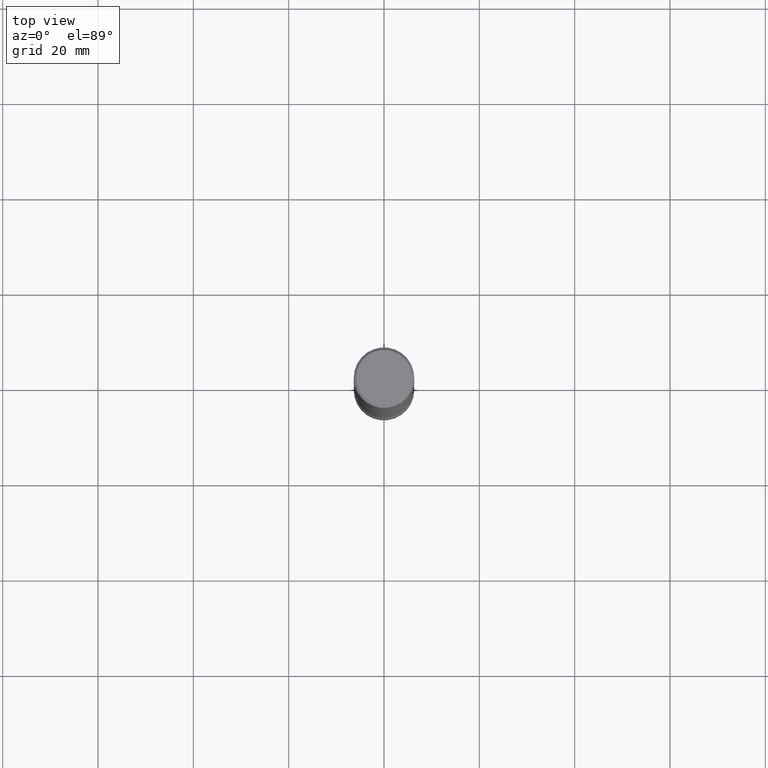
[diagram: clean part render]
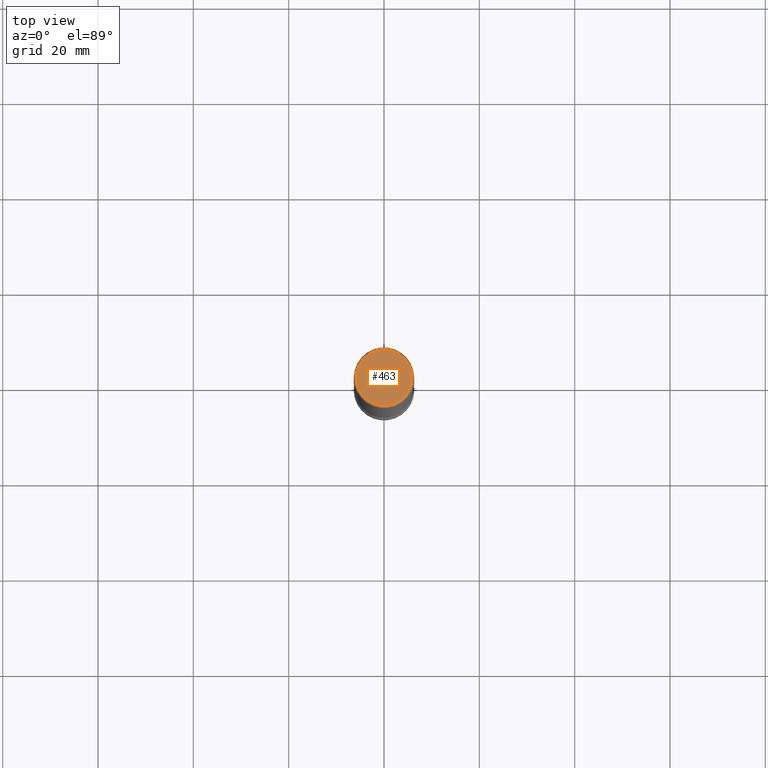
[diagram: same view with one face highlighted and labeled with its STEP entity id]
A machine part, top view. The second image highlights one B-rep face of the part: STEP entity #463.
In plain terms, the highlighted planar face has unit normal (0, -0, -1).
Its self-contained STEP definition (entity closure, byte-faithful):
#33 = DIRECTION ( 'NONE',  ( 1.000000000000000000, -6.982962677686266711E-15, 4.876225828469315047E-29 ) ) ;
#60 = VERTEX_POINT ( 'NONE', #694 ) ;
#81 = DIRECTION ( 'NONE',  ( -2.445468806185136597E-29, 3.491481338843145583E-15, 1.000000000000000000 ) ) ;
#117 = AXIS2_PLACEMENT_3D ( 'NONE', #590, #417, #663 ) ;
#148 = CIRCLE ( 'NONE', #524, 0.2299999999999997047 ) ;
#155 = CARTESIAN_POINT ( 'NONE',  ( -1.043851414335219820E-46, 1.490343170380447200E-32, 4.268512490100411279E-18 ) ) ;
#156 = EDGE_CURVE ( 'NONE', #324, #60, #480, .T. ) ;
#169 = PLANE ( 'NONE',  #117 ) ;
#197 = ORIENTED_EDGE ( 'NONE', *, *, #405, .T. ) ;
#206 = EDGE_LOOP ( 'NONE', ( #197, #698 ) ) ;
#324 = VERTEX_POINT ( 'NONE', #715 ) ;
#405 = EDGE_CURVE ( 'NONE', #60, #324, #148, .T. ) ;
#417 = DIRECTION ( 'NONE',  ( 2.438088387897960049E-29, -3.491481338843145188E-15, -1.000000000000000000 ) ) ;
#463 = ADVANCED_FACE ( 'NONE', ( #785 ), #169, .F. ) ;
#480 = CIRCLE ( 'NONE', #554, 0.2299999999999997047 ) ;
#524 = AXIS2_PLACEMENT_3D ( 'NONE', #790, #659, #33 ) ;
#554 = AXIS2_PLACEMENT_3D ( 'NONE', #155, #81, #771 ) ;
#590 = CARTESIAN_POINT ( 'NONE',  ( 1.606081415867839095E-15, 0.2299999999999997047, -8.009064516888722925E-16 ) ) ;
#659 = DIRECTION ( 'NONE',  ( -2.445468806185136597E-29, 3.491481338843145583E-15, 1.000000000000000000 ) ) ;
#663 = DIRECTION ( 'NONE',  ( -1.000000000000000000, 6.982962677686265922E-15, -4.876176775795935793E-29 ) ) ;
#694 = CARTESIAN_POINT ( 'NONE',  ( -0.2299999999999997047, 1.640996229256270547E-15, 4.268512490089056766E-18 ) ) ;
#698 = ORIENTED_EDGE ( 'NONE', *, *, #156, .T. ) ;
#715 = CARTESIAN_POINT ( 'NONE',  ( 0.2299999999999997047, -1.681434332853597236E-15, 4.268512490111905999E-18 ) ) ;
#771 = DIRECTION ( 'NONE',  ( 1.000000000000000000, -6.982962677686266711E-15, 4.876225828469315047E-29 ) ) ;
#785 = FACE_OUTER_BOUND ( 'NONE', #206, .T. ) ;
#790 = CARTESIAN_POINT ( 'NONE',  ( -1.043851414335219820E-46, 1.490343170380447200E-32, 4.268512490100411279E-18 ) ) ;